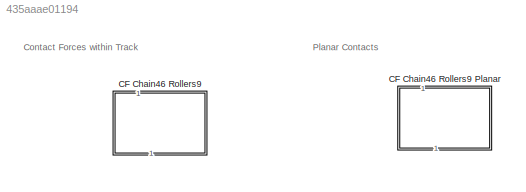
MODEL slx_435aaae01194
KIND library
CONFIG SolverName = VariableStepAuto
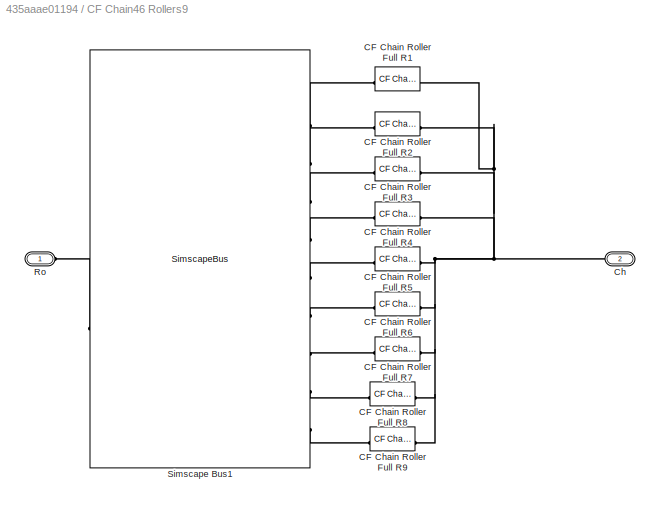
BLOCK [SubSystem] CF Chain46 Rollers9
  NameLocation = right
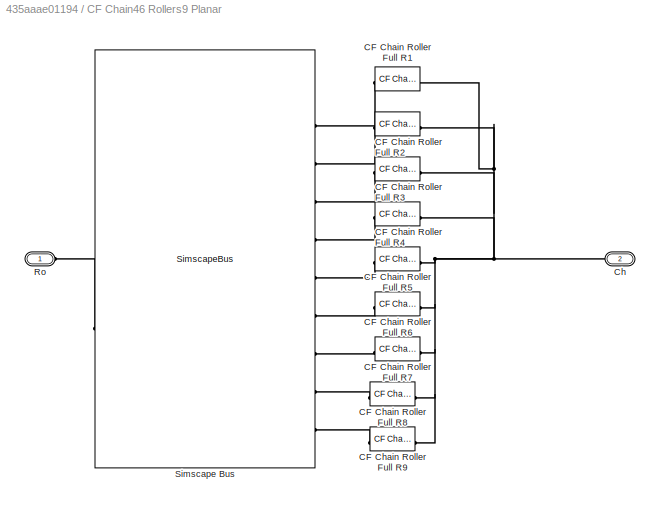
BLOCK [SubSystem] CF Chain46 Rollers9 Planar
  NameLocation = right
BLOCK [Reference] CF Chain46 Rollers9 Planar/CF Chain Roller Full R1  REF=sm_trackV_lib_chain_contact_s46/CF Chain46
Roller
Planar
  SourceBlock = sm_trackV_lib_chain_contact_s46/CF Chain46\nRoller\nPlanar
  SourceType = Contact Force, Full Chain to One Roller
BLOCK [Reference] CF Chain46 Rollers9 Planar/CF Chain Roller Full R2  REF=sm_trackV_lib_chain_contact_s46/CF Chain46
Roller
Planar
  SourceBlock = sm_trackV_lib_chain_contact_s46/CF Chain46\nRoller\nPlanar
  SourceType = Contact Force, Full Chain to One Roller
BLOCK [Reference] CF Chain46 Rollers9 Planar/CF Chain Roller Full R3  REF=sm_trackV_lib_chain_contact_s46/CF Chain46
Roller
Planar
  SourceBlock = sm_trackV_lib_chain_contact_s46/CF Chain46\nRoller\nPlanar
  SourceType = Contact Force, Full Chain to One Roller
BLOCK [Reference] CF Chain46 Rollers9 Planar/CF Chain Roller Full R4  REF=sm_trackV_lib_chain_contact_s46/CF Chain46
Roller
Planar
  SourceBlock = sm_trackV_lib_chain_contact_s46/CF Chain46\nRoller\nPlanar
  SourceType = Contact Force, Full Chain to One Roller
BLOCK [Reference] CF Chain46 Rollers9 Planar/CF Chain Roller Full R5  REF=sm_trackV_lib_chain_contact_s46/CF Chain46
Roller
Planar
  SourceBlock = sm_trackV_lib_chain_contact_s46/CF Chain46\nRoller\nPlanar
  SourceType = Contact Force, Full Chain to One Roller
BLOCK [Reference] CF Chain46 Rollers9 Planar/CF Chain Roller Full R6  REF=sm_trackV_lib_chain_contact_s46/CF Chain46
Roller
Planar
  SourceBlock = sm_trackV_lib_chain_contact_s46/CF Chain46\nRoller\nPlanar
  SourceType = Contact Force, Full Chain to One Roller
BLOCK [Reference] CF Chain46 Rollers9 Planar/CF Chain Roller Full R7  REF=sm_trackV_lib_chain_contact_s46/CF Chain46
Roller
Planar
  SourceBlock = sm_trackV_lib_chain_contact_s46/CF Chain46\nRoller\nPlanar
  SourceType = Contact Force, Full Chain to One Roller
BLOCK [Reference] CF Chain46 Rollers9 Planar/CF Chain Roller Full R8  REF=sm_trackV_lib_chain_contact_s46/CF Chain46
Roller
Planar
  SourceBlock = sm_trackV_lib_chain_contact_s46/CF Chain46\nRoller\nPlanar
  SourceType = Contact Force, Full Chain to One Roller
BLOCK [Reference] CF Chain46 Rollers9 Planar/CF Chain Roller Full R9  REF=sm_trackV_lib_chain_contact_s46/CF Chain46
Roller
Planar
  SourceBlock = sm_trackV_lib_chain_contact_s46/CF Chain46\nRoller\nPlanar
  SourceType = Contact Force, Full Chain to One Roller
BLOCK [PMIOPort] CF Chain46 Rollers9 Planar/Ch
  Port = 2
  Side = Right
BLOCK [PMIOPort] CF Chain46 Rollers9 Planar/Ro
  Side = Left
BLOCK [SimscapeBus] CF Chain46 Rollers9 Planar/Simscape Bus
  ConnectionType = Bus: CBO_Roller9
  HierarchyStrings = P1;P2;P3;P4;P5;P6;P7;P8;P9
  NameLocation = top
BLOCK [Reference] CF Chain46 Rollers9/CF Chain Roller Full R1  REF=sm_trackV_lib_chain_contact_s46/CF Chain46
Roller
  SourceBlock = sm_trackV_lib_chain_contact_s46/CF Chain46\nRoller
  SourceType = Contact Force, Full Chain to One Roller
BLOCK [Reference] CF Chain46 Rollers9/CF Chain Roller Full R2  REF=sm_trackV_lib_chain_contact_s46/CF Chain46
Roller
  SourceBlock = sm_trackV_lib_chain_contact_s46/CF Chain46\nRoller
  SourceType = Contact Force, Full Chain to One Roller
BLOCK [Reference] CF Chain46 Rollers9/CF Chain Roller Full R3  REF=sm_trackV_lib_chain_contact_s46/CF Chain46
Roller
  SourceBlock = sm_trackV_lib_chain_contact_s46/CF Chain46\nRoller
  SourceType = Contact Force, Full Chain to One Roller
BLOCK [Reference] CF Chain46 Rollers9/CF Chain Roller Full R4  REF=sm_trackV_lib_chain_contact_s46/CF Chain46
Roller
  SourceBlock = sm_trackV_lib_chain_contact_s46/CF Chain46\nRoller
  SourceType = Contact Force, Full Chain to One Roller
BLOCK [Reference] CF Chain46 Rollers9/CF Chain Roller Full R5  REF=sm_trackV_lib_chain_contact_s46/CF Chain46
Roller
  SourceBlock = sm_trackV_lib_chain_contact_s46/CF Chain46\nRoller
  SourceType = Contact Force, Full Chain to One Roller
BLOCK [Reference] CF Chain46 Rollers9/CF Chain Roller Full R6  REF=sm_trackV_lib_chain_contact_s46/CF Chain46
Roller
  SourceBlock = sm_trackV_lib_chain_contact_s46/CF Chain46\nRoller
  SourceType = Contact Force, Full Chain to One Roller
BLOCK [Reference] CF Chain46 Rollers9/CF Chain Roller Full R7  REF=sm_trackV_lib_chain_contact_s46/CF Chain46
Roller
  SourceBlock = sm_trackV_lib_chain_contact_s46/CF Chain46\nRoller
  SourceType = Contact Force, Full Chain to One Roller
BLOCK [Reference] CF Chain46 Rollers9/CF Chain Roller Full R8  REF=sm_trackV_lib_chain_contact_s46/CF Chain46
Roller
  SourceBlock = sm_trackV_lib_chain_contact_s46/CF Chain46\nRoller
  SourceType = Contact Force, Full Chain to One Roller
BLOCK [Reference] CF Chain46 Rollers9/CF Chain Roller Full R9  REF=sm_trackV_lib_chain_contact_s46/CF Chain46
Roller
  SourceBlock = sm_trackV_lib_chain_contact_s46/CF Chain46\nRoller
  SourceType = Contact Force, Full Chain to One Roller
BLOCK [PMIOPort] CF Chain46 Rollers9/Ch
  Port = 2
  Side = Right
BLOCK [PMIOPort] CF Chain46 Rollers9/Ro
  Side = Left
BLOCK [SimscapeBus] CF Chain46 Rollers9/Simscape Bus1
  ConnectionType = Bus: CBO_Roller9
  HierarchyStrings = P1;P2;P3;P4;P5;P6;P7;P8;P9
ANNOTATION (root): Contact Forces within Track
ANNOTATION (root): Planar Contacts
PLINE CF Chain46 Rollers9 Planar/CF Chain Roller Full R1:LConn1 -- CF Chain46 Rollers9 Planar/Simscape Bus:LConn1
PNET net1: CF Chain46 Rollers9 Planar/CF Chain Roller Full R1:RConn1 -- CF Chain46 Rollers9 Planar/CF Chain Roller Full R2:RConn1 -- CF Chain46 Rollers9 Planar/CF Chain Roller Full R3:RConn1 -- CF Chain46 Rollers9 Planar/CF Chain Roller Full R4:RConn1 -- CF Chain46 Rollers9 Planar/CF Chain Roller Full R5:RConn1 -- CF Chain46 Rollers9 Planar/CF Chain Roller Full R6:RConn1 -- CF Chain46 Rollers9 Planar/CF Chain Roller Full R7:RConn1 -- CF Chain46 Rollers9 Planar/CF Chain Roller Full R8:RConn1 -- CF Chain46 Rollers9 Planar/CF Chain Roller Full R9:RConn1 -- CF Chain46 Rollers9 Planar/Ch:RConn1
PLINE CF Chain46 Rollers9 Planar/CF Chain Roller Full R2:LConn1 -- CF Chain46 Rollers9 Planar/Simscape Bus:LConn2
PLINE CF Chain46 Rollers9 Planar/CF Chain Roller Full R3:LConn1 -- CF Chain46 Rollers9 Planar/Simscape Bus:LConn3
PLINE CF Chain46 Rollers9 Planar/CF Chain Roller Full R4:LConn1 -- CF Chain46 Rollers9 Planar/Simscape Bus:LConn4
PLINE CF Chain46 Rollers9 Planar/CF Chain Roller Full R5:LConn1 -- CF Chain46 Rollers9 Planar/Simscape Bus:LConn5
PLINE CF Chain46 Rollers9 Planar/CF Chain Roller Full R6:LConn1 -- CF Chain46 Rollers9 Planar/Simscape Bus:LConn6
PLINE CF Chain46 Rollers9 Planar/CF Chain Roller Full R7:LConn1 -- CF Chain46 Rollers9 Planar/Simscape Bus:LConn7
PLINE CF Chain46 Rollers9 Planar/CF Chain Roller Full R8:LConn1 -- CF Chain46 Rollers9 Planar/Simscape Bus:LConn8
PLINE CF Chain46 Rollers9 Planar/CF Chain Roller Full R9:LConn1 -- CF Chain46 Rollers9 Planar/Simscape Bus:LConn9
PLINE CF Chain46 Rollers9 Planar/Ro:RConn1 -- CF Chain46 Rollers9 Planar/Simscape Bus:RConn1
PLINE CF Chain46 Rollers9/CF Chain Roller Full R1:LConn1 -- CF Chain46 Rollers9/Simscape Bus1:LConn1
PNET net2: CF Chain46 Rollers9/CF Chain Roller Full R1:RConn1 -- CF Chain46 Rollers9/CF Chain Roller Full R2:RConn1 -- CF Chain46 Rollers9/CF Chain Roller Full R3:RConn1 -- CF Chain46 Rollers9/CF Chain Roller Full R4:RConn1 -- CF Chain46 Rollers9/CF Chain Roller Full R5:RConn1 -- CF Chain46 Rollers9/CF Chain Roller Full R6:RConn1 -- CF Chain46 Rollers9/CF Chain Roller Full R7:RConn1 -- CF Chain46 Rollers9/CF Chain Roller Full R8:RConn1 -- CF Chain46 Rollers9/CF Chain Roller Full R9:RConn1 -- CF Chain46 Rollers9/Ch:RConn1
PLINE CF Chain46 Rollers9/CF Chain Roller Full R2:LConn1 -- CF Chain46 Rollers9/Simscape Bus1:LConn2
PLINE CF Chain46 Rollers9/CF Chain Roller Full R3:LConn1 -- CF Chain46 Rollers9/Simscape Bus1:LConn3
PLINE CF Chain46 Rollers9/CF Chain Roller Full R4:LConn1 -- CF Chain46 Rollers9/Simscape Bus1:LConn4
PLINE CF Chain46 Rollers9/CF Chain Roller Full R5:LConn1 -- CF Chain46 Rollers9/Simscape Bus1:LConn5
PLINE CF Chain46 Rollers9/CF Chain Roller Full R6:LConn1 -- CF Chain46 Rollers9/Simscape Bus1:LConn6
PLINE CF Chain46 Rollers9/CF Chain Roller Full R7:LConn1 -- CF Chain46 Rollers9/Simscape Bus1:LConn7
PLINE CF Chain46 Rollers9/CF Chain Roller Full R8:LConn1 -- CF Chain46 Rollers9/Simscape Bus1:LConn8
PLINE CF Chain46 Rollers9/CF Chain Roller Full R9:LConn1 -- CF Chain46 Rollers9/Simscape Bus1:LConn9
PLINE CF Chain46 Rollers9/Ro:RConn1 -- CF Chain46 Rollers9/Simscape Bus1:RConn1
note: PNET lines group multi-terminal physical nets as a canonical sorted terminal list (undirected conserving connections); 2-terminal nets keep the pairwise PLINE form
